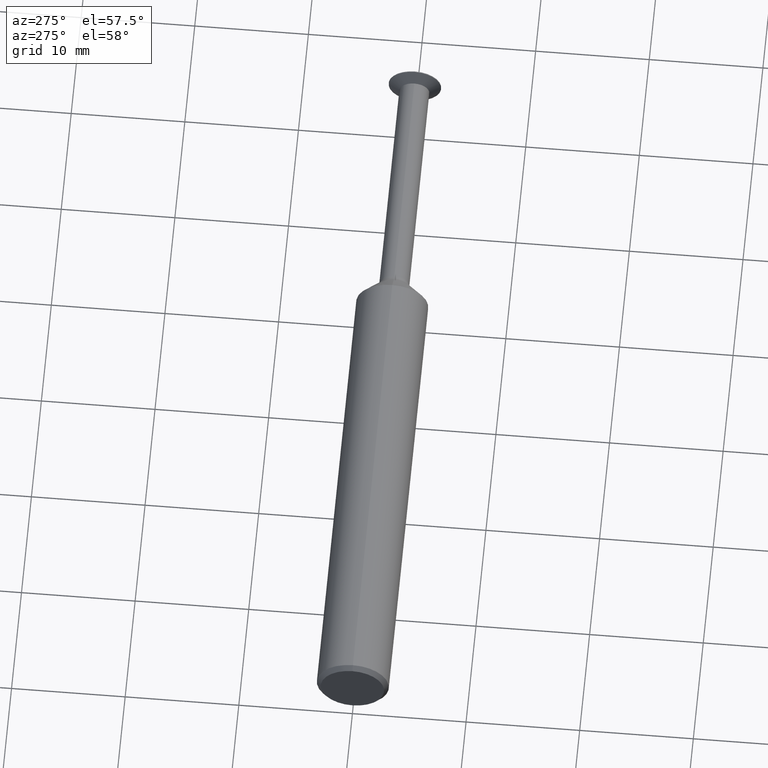
[diagram: clean part render]
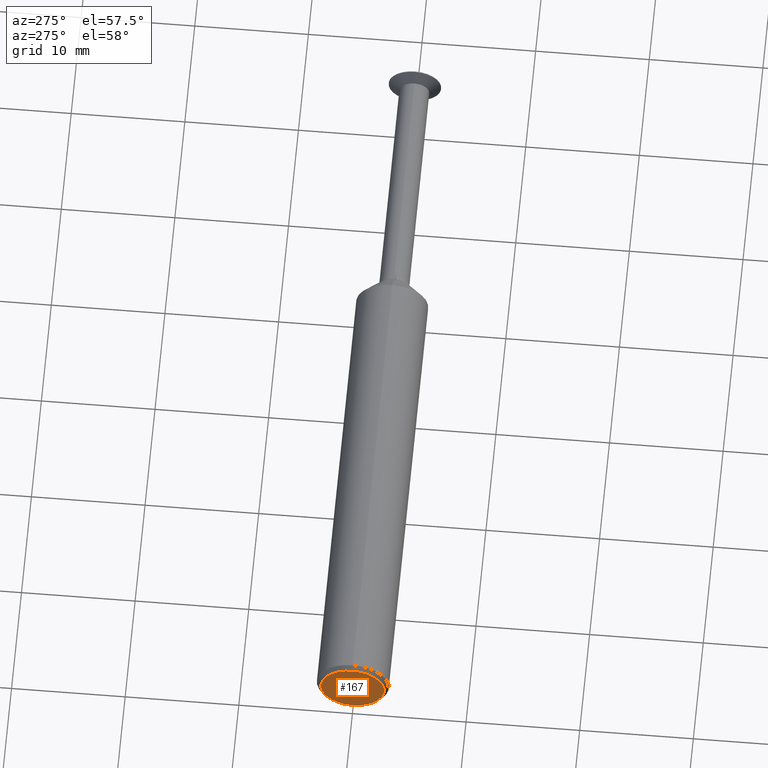
[diagram: same view with one face highlighted and labeled with its STEP entity id]
A machine part, auxiliary view. The second image highlights one B-rep face of the part: STEP entity #167.
In plain terms, the highlighted planar face has unit normal (1, 0, 0).
Its self-contained STEP definition (entity closure, byte-faithful):
#37 = VERTEX_POINT ( 'NONE', #400 ) ;
#51 = CARTESIAN_POINT ( 'NONE',  ( 0.0000000000000000000, 0.0000000000000000000, 0.0000000000000000000 ) ) ;
#59 = EDGE_LOOP ( 'NONE', ( #198, #383 ) ) ;
#67 = FACE_OUTER_BOUND ( 'NONE', #59, .T. ) ;
#71 = CARTESIAN_POINT ( 'NONE',  ( 0.0000000000000000000, 1.437123018799418210E-17, 0.1098499999999999199 ) ) ;
#88 = CIRCLE ( 'NONE', #189, 0.1098499999999999199 ) ;
#124 = CARTESIAN_POINT ( 'NONE',  ( 0.0000000000000000000, 0.0000000000000000000, 0.0000000000000000000 ) ) ;
#127 = DIRECTION ( 'NONE',  ( -1.000000000000000000, -0.0000000000000000000, -0.0000000000000000000 ) ) ;
#138 = DIRECTION ( 'NONE',  ( 0.0000000000000000000, 0.0000000000000000000, -1.000000000000000000 ) ) ;
#146 = PLANE ( 'NONE',  #196 ) ;
#152 = DIRECTION ( 'NONE',  ( 0.0000000000000000000, 0.0000000000000000000, -1.000000000000000000 ) ) ;
#167 = ADVANCED_FACE ( 'NONE', ( #67 ), #146, .F. ) ;
#169 = DIRECTION ( 'NONE',  ( 1.000000000000000000, 0.0000000000000000000, 0.0000000000000000000 ) ) ;
#180 = CARTESIAN_POINT ( 'NONE',  ( 0.0000000000000000000, 0.0000000000000000000, 0.0000000000000000000 ) ) ;
#183 = DIRECTION ( 'NONE',  ( -1.000000000000000000, -0.0000000000000000000, -0.0000000000000000000 ) ) ;
#186 = DIRECTION ( 'NONE',  ( 0.0000000000000000000, 0.0000000000000000000, -1.000000000000000000 ) ) ;
#189 = AXIS2_PLACEMENT_3D ( 'NONE', #124, #127, #138 ) ;
#196 = AXIS2_PLACEMENT_3D ( 'NONE', #51, #169, #152 ) ;
#198 = ORIENTED_EDGE ( 'NONE', *, *, #438, .T. ) ;
#303 = VERTEX_POINT ( 'NONE', #71 ) ;
#383 = ORIENTED_EDGE ( 'NONE', *, *, #416, .T. ) ;
#400 = CARTESIAN_POINT ( 'NONE',  ( 0.0000000000000000000, 0.0000000000000000000, -0.1098499999999999199 ) ) ;
#416 = EDGE_CURVE ( 'NONE', #303, #37, #88, .T. ) ;
#438 = EDGE_CURVE ( 'NONE', #37, #303, #496, .T. ) ;
#449 = AXIS2_PLACEMENT_3D ( 'NONE', #180, #183, #186 ) ;
#496 = CIRCLE ( 'NONE', #449, 0.1098499999999999199 ) ;